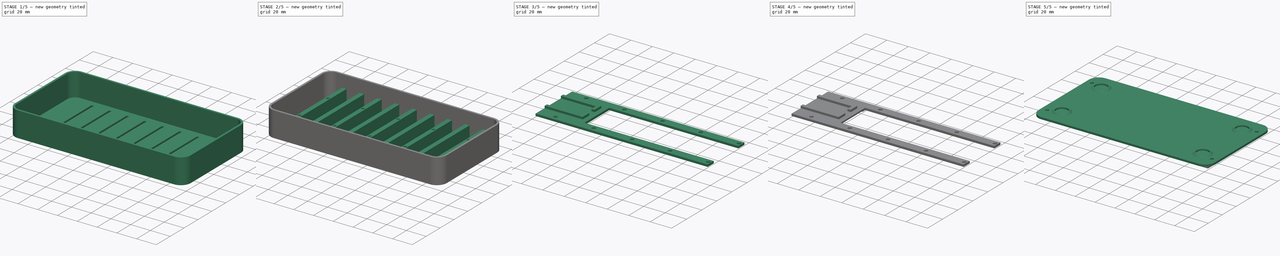
[diagram: build sequence overview — one tinted view per stage of 5, left to right]
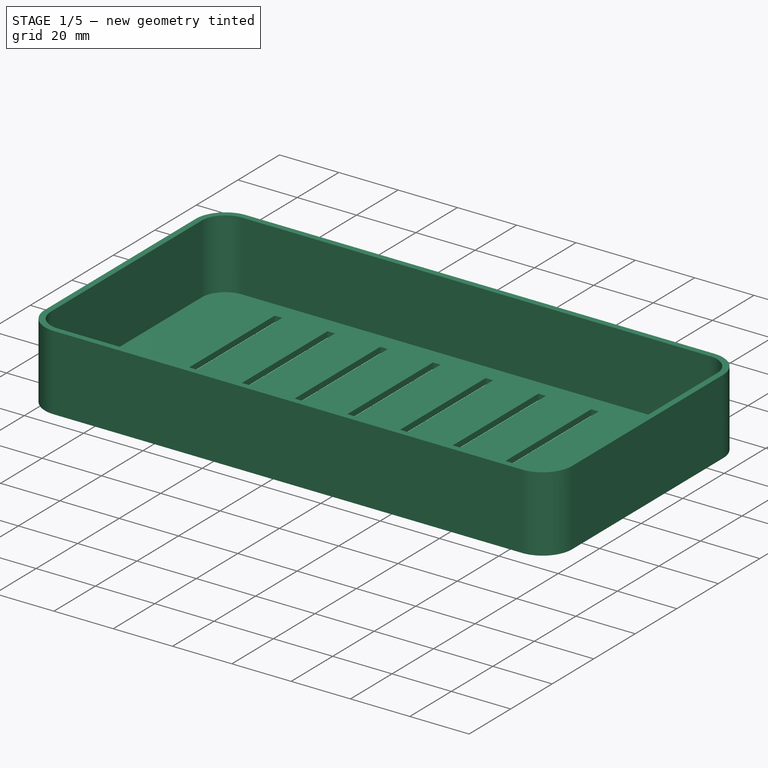
[diagram: stage 1 of 5 — iso view after this stage's code; geometry added in this stage tinted green]
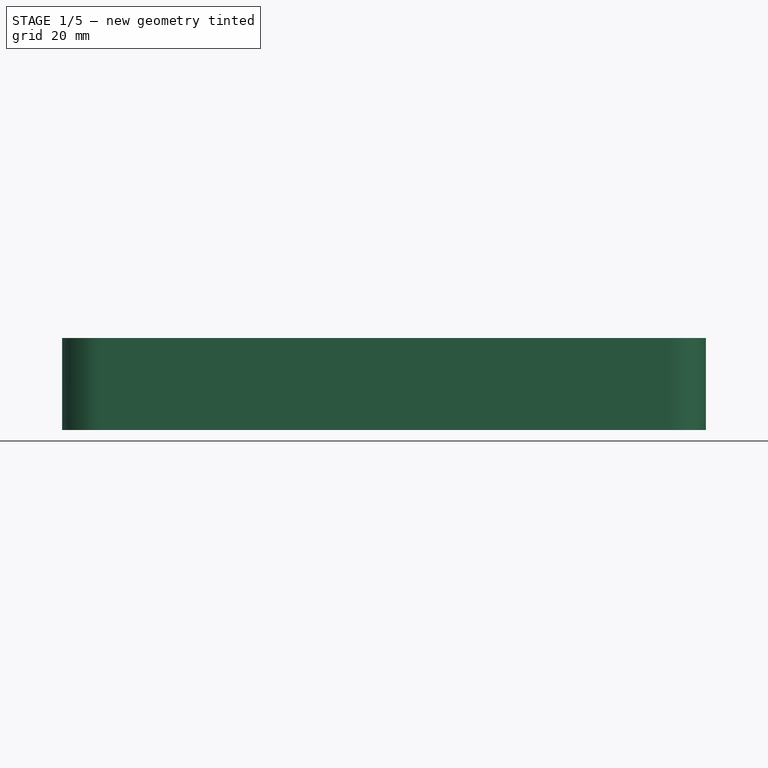
[diagram: stage 1 of 5 — front view after this stage's code; geometry added in this stage tinted green]
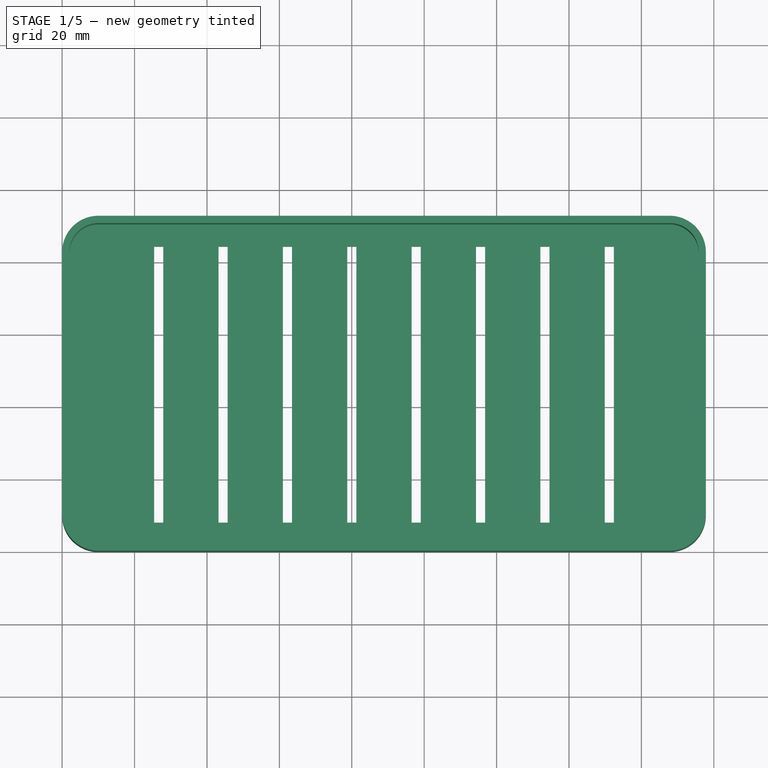
[diagram: stage 1 of 5 — top view after this stage's code; geometry added in this stage tinted green]
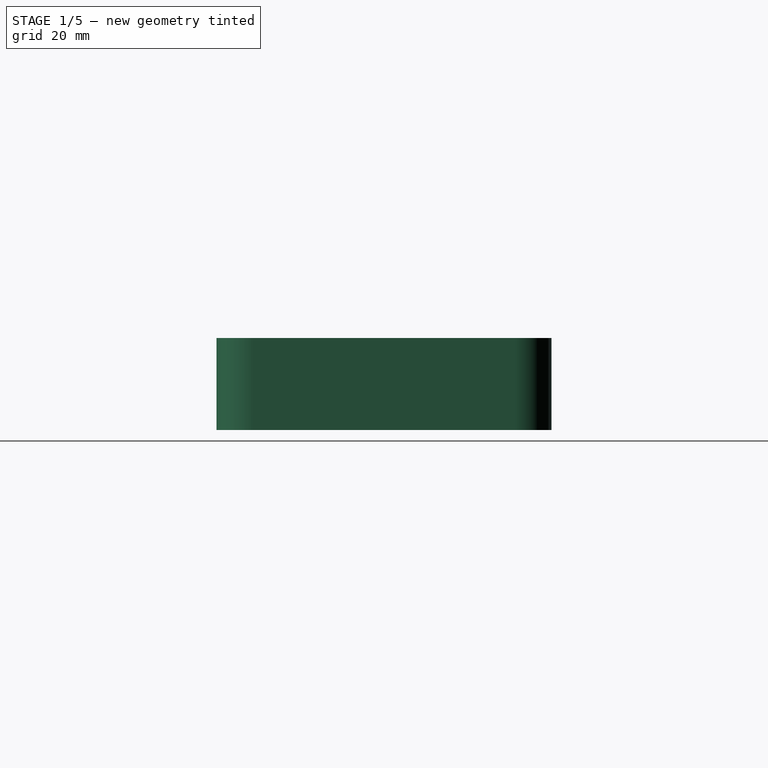
[diagram: stage 1 of 5 — right view after this stage's code; geometry added in this stage tinted green]
FCSTD DOCUMENT  (FreeCAD 1.0R39109 (Git))
Label: HousingLid
License: All rights reserved
LicenseURL: https://en.wikipedia.org/wiki/All_rights_reserved
objects: Sketcher::SketchObject×12, PartDesign::Pad×7, PartDesign::Pocket×6, PartDesign::ShapeBinder×4, PartDesign::Body×3, PartDesign::LinearPattern×2, PartDesign::Chamfer×2, PartDesign::Fillet×1, PartDesign::Thickness×1
note: 86 computed .brp shape members not serialized (recipe doc carries the construction recipe); baked Part::Feature solids carry a one-line shape summary decoded from their .brp

FEATURE [Sketcher::SketchObject] Sketch
  ArcFitTolerance = 1e-06
  AttachmentSupport = -> [XY_Plane]
  FullyConstrained = true
  MakeInternals = false
  MapMode = 5
  sketch-geometry (4):
    g0: LineSegment StartX=0 StartY=0 StartZ=0 EndX=177.8 EndY=0 EndZ=0
    g1: LineSegment StartX=177.8 StartY=0 StartZ=0 EndX=177.8 EndY=92.519 EndZ=0
    g2: LineSegment StartX=177.8 StartY=92.519 StartZ=0 EndX=0 EndY=92.519 EndZ=0
    g3: LineSegment StartX=0 StartY=92.519 StartZ=0 EndX=0 EndY=0 EndZ=0
  constraints (11):
    c: Coincident(g0,g1)
    c: Coincident(g1,g2)
    c: Coincident(g2,g3)
    c: Coincident(g3,g0)
    c: Horizontal(g0)
    c: Horizontal(g2)
    c: Vertical(g1)
    c: Vertical(g3)
    c: Distance(g1,g3) = 177.8
    c: Distance(g0,g2) = 92.519
    c: Coincident(g0,g-1)
FEATURE [PartDesign::Pad] Pad
  Direction = (0,0,1)
  Length = 25.4
  Length2 = 10
  Profile = -> Sketch
  ReferenceAxis = -> Sketch [N_Axis]
  Refine = true
  Suppressed = false
  Type = 0
FEATURE [PartDesign::Fillet] Fillet
  Base = -> Pad [Edge1,Edge2,Edge5,Edge8]
  BaseFeature = -> Pad
  Radius = 10
  Refine = true
  SupportTransform = false
  Suppressed = false
  UseAllEdges = false
FEATURE [PartDesign::Thickness] Thickness
  Base = -> Fillet [Face5]
  BaseFeature = -> Fillet
  Intersection = false
  Join = 0
  Mode = 0
  Refine = true
  Reversed = true
  SupportTransform = false
  Suppressed = false
  Value = 2
FEATURE [Sketcher::SketchObject] Sketch001
  ArcFitTolerance = 1e-06
  AttachmentSupport = -> [Thickness]
  ExternalGeometry = -> [Thickness]
  FullyConstrained = true
  MakeInternals = false
  MapMode = 5
  Placement = pos=(0,0,2) rot=(0,0,1;0rad)
  sketch-geometry (46):
    g0: LineSegment StartX=25.4 StartY=84.3595 StartZ=0 EndX=25.4 EndY=8.1595 EndZ=0
    g1: LineSegment StartX=25.4 StartY=8.1595 StartZ=0 EndX=27.94 EndY=8.1595 EndZ=0
    g2: LineSegment StartX=27.94 StartY=8.1595 StartZ=0 EndX=27.94 EndY=84.3595 EndZ=0
    g3: LineSegment StartX=27.94 StartY=84.3595 StartZ=0 EndX=25.4 EndY=84.3595 EndZ=0
    g4: LineSegment [constr] StartX=27.94 StartY=84.3595 StartZ=0 EndX=27.94 EndY=90.519 EndZ=0
    g5: LineSegment [constr] StartX=27.94 StartY=8.1595 StartZ=0 EndX=27.94 EndY=2 EndZ=0
    g6: LineSegment StartX=43.18 StartY=84.3595 StartZ=0 EndX=43.18 EndY=8.1595 EndZ=0
    g7: LineSegment StartX=43.18 StartY=8.1595 StartZ=0 EndX=45.72 EndY=8.1595 EndZ=0
    g8: LineSegment StartX=45.72 StartY=8.1595 StartZ=0 EndX=45.72 EndY=84.3595 EndZ=0
    g9: LineSegment StartX=45.72 StartY=84.3595 StartZ=0 EndX=43.18 EndY=84.3595 EndZ=0
    g10: LineSegment StartX=60.96 StartY=84.3595 StartZ=0 EndX=60.96 EndY=8.1595 EndZ=0
    g11: LineSegment StartX=60.96 StartY=8.1595 StartZ=0 EndX=63.5 EndY=8.1595 EndZ=0
    g12: LineSegment StartX=63.5 StartY=8.1595 StartZ=0 EndX=63.5 EndY=84.3595 EndZ=0
    g13: LineSegment StartX=63.5 StartY=84.3595 StartZ=0 EndX=60.96 EndY=84.3595 EndZ=0
    g14: LineSegment StartX=78.74 StartY=84.3595 StartZ=0 EndX=78.74 EndY=8.1595 EndZ=0
    g15: LineSegment StartX=78.74 StartY=8.1595 StartZ=0 EndX=81.28 EndY=8.1595 EndZ=0
    g16: LineSegment StartX=81.28 StartY=8.1595 StartZ=0 EndX=81.28 EndY=84.3595 EndZ=0
    g17: LineSegment StartX=81.28 StartY=84.3595 StartZ=0 EndX=78.74 EndY=84.3595 EndZ=0
    g18: LineSegment StartX=96.52 StartY=84.3595 StartZ=0 EndX=96.52 EndY=8.1595 EndZ=0
    g19: LineSegment StartX=96.52 StartY=8.1595 StartZ=0 EndX=99.06 EndY=8.1595 EndZ=0
    g20: LineSegment StartX=99.06 StartY=8.1595 StartZ=0 EndX=99.06 EndY=84.3595 EndZ=0
    g21: LineSegment StartX=99.06 StartY=84.3595 StartZ=0 EndX=96.52 EndY=84.3595 EndZ=0
    g22: LineSegment StartX=114.3 StartY=84.3595 StartZ=0 EndX=114.3 EndY=8.1595 EndZ=0
    g23: LineSegment StartX=114.3 StartY=8.1595 StartZ=0 EndX=116.84 EndY=8.1595 EndZ=0
    g24: LineSegment StartX=116.84 StartY=8.1595 StartZ=0 EndX=116.84 EndY=84.3595 EndZ=0
    g25: LineSegment StartX=116.84 StartY=84.3595 StartZ=0 EndX=114.3 EndY=84.3595 EndZ=0
    g26: LineSegment StartX=132.08 StartY=84.3595 StartZ=0 EndX=132.08 EndY=8.1595 EndZ=0
    g27: LineSegment StartX=132.08 StartY=8.1595 StartZ=0 EndX=134.62 EndY=8.1595 EndZ=0
    g28: LineSegment StartX=134.62 StartY=8.1595 StartZ=0 EndX=134.62 EndY=84.3595 EndZ=0
    g29: LineSegment StartX=134.62 StartY=84.3595 StartZ=0 EndX=132.08 EndY=84.3595 EndZ=0
    g30: LineSegment StartX=149.86 StartY=84.3595 StartZ=0 EndX=149.86 EndY=8.1595 EndZ=0
    g31: LineSegment StartX=149.86 StartY=8.1595 StartZ=0 EndX=152.4 EndY=8.1595 EndZ=0
    g32: LineSegment StartX=152.4 StartY=8.1595 StartZ=0 EndX=152.4 EndY=84.3595 EndZ=0
    g33: LineSegment StartX=152.4 StartY=84.3595 StartZ=0 EndX=149.86 EndY=84.3595 EndZ=0
    g34: LineSegment [constr] StartX=27.94 StartY=84.3595 StartZ=0 EndX=43.18 EndY=84.3595 EndZ=0
    g35: LineSegment [constr] StartX=45.72 StartY=84.3595 StartZ=0 EndX=60.96 EndY=84.3595 EndZ=0
    g36: LineSegment [constr] StartX=63.5 StartY=84.3595 StartZ=0 EndX=78.74 EndY=84.3595 EndZ=0
    g37: LineSegment [constr] StartX=81.28 StartY=84.3595 StartZ=0 EndX=96.52 EndY=84.3595 EndZ=0
    g38: LineSegment [constr] StartX=99.06 StartY=84.3595 StartZ=0 EndX=114.3 EndY=84.3595 EndZ=0
    g39: LineSegment [constr] StartX=116.84 StartY=84.3595 StartZ=0 EndX=132.08 EndY=84.3595 EndZ=0
    g40: LineSegment [constr] StartX=134.62 StartY=84.3595 StartZ=0 EndX=149.86 EndY=84.3595 EndZ=0
    g41: LineSegment [constr] StartX=27.94 StartY=8.1595 StartZ=0 EndX=45.72 EndY=8.1595 EndZ=0
    g42: LineSegment [constr] StartX=2 StartY=82.519 StartZ=0 EndX=2 EndY=84.3595 EndZ=0
    g43: LineSegment [constr] StartX=2 StartY=84.3595 StartZ=0 EndX=25.4 EndY=84.3595 EndZ=0
    g44: LineSegment [constr] StartX=175.8 StartY=82.519 StartZ=0 EndX=175.8 EndY=84.3595 EndZ=0
    g45: LineSegment [constr] StartX=175.8 StartY=84.3595 StartZ=0 EndX=152.4 EndY=84.3595 EndZ=0
  constraints (128):
    c: Coincident(g0,g1)
    c: Coincident(g1,g2)
    c: Coincident(g2,g3)
    c: Coincident(g3,g0)
    c: Vertical(g0)
    c: Vertical(g2)
    c: Horizontal(g1)
    c: Horizontal(g3)
    c: Distance(g0,g2) = 2.54
    c: Distance(g1,g3) = 76.2
    c: Coincident(g4,g2)
    c: PointOnObject(g4,g-3)
    c: Vertical(g4)
    c: Coincident(g5,g1)
    c: PointOnObject(g5,g-5)
    c: Vertical(g5)
    c: Equal(g4,g5)
    c: Coincident(g6,g7)
    c: Coincident(g7,g8)
    c: Coincident(g8,g9)
    c: Coincident(g9,g6)
    c: Vertical(g6)
    c: Vertical(g8)
    c: Horizontal(g7)
    c: Horizontal(g9)
    c: Coincident(g10,g11)
    c: Coincident(g11,g12)
    c: Coincident(g12,g13)
    c: Coincident(g13,g10)
    c: Vertical(g10)
    c: Vertical(g12)
    c: Horizontal(g11)
    c: Horizontal(g13)
    c: Coincident(g14,g15)
    c: Coincident(g15,g16)
    c: Coincident(g16,g17)
    c: Coincident(g17,g14)
    c: Vertical(g14)
    c: Vertical(g16)
    c: Horizontal(g15)
    c: Horizontal(g17)
    c: Coincident(g18,g19)
    c: Coincident(g19,g20)
    c: Coincident(g20,g21)
    c: Coincident(g21,g18)
    c: Vertical(g18)
    c: Vertical(g20)
    c: Horizontal(g19)
    c: Horizontal(g21)
    c: Coincident(g22,g23)
    c: Coincident(g23,g24)
    c: Coincident(g24,g25)
    c: Coincident(g25,g22)
    c: Vertical(g22)
    c: Vertical(g24)
    c: Horizontal(g23)
    c: Horizontal(g25)
    c: Coincident(g26,g27)
    c: Coincident(g27,g28)
    c: Coincident(g28,g29)
    c: Coincident(g29,g26)
    c: Vertical(g26)
    c: Vertical(g28)
    c: Horizontal(g27)
    c: Horizontal(g29)
    c: Coincident(g30,g31)
    c: Coincident(g31,g32)
    c: Coincident(g32,g33)
    c: Coincident(g33,g30)
    c: Vertical(g30)
    c: Vertical(g32)
    c: Horizontal(g31)
    c: Horizontal(g33)
    c: Equal(g6,g0)
    c: Equal(g10,g6)
    c: Equal(g14,g6)
    c: Equal(g18,g6)
    c: Equal(g22,g6)
    c: Equal(g26,g6)
    c: Equal(g30,g6)
    c: Equal(g1,g7)
    c: Equal(g7,g11)
    c: Equal(g15,g11)
    c: Equal(g19,g15)
    c: Equal(g23,g19)
    c: Equal(g27,g23)
    c: Equal(g31,g27)
    c: Coincident(g34,g2)
    c: Coincident(g34,g6)
    c: Horizontal(g34)
    c: Coincident(g35,g8)
    c: Coincident(g35,g10)
    c: Horizontal(g35)
    c: Coincident(g36,g12)
    c: Coincident(g36,g14)
    c: Horizontal(g36)
    c: Coincident(g37,g16)
    c: Coincident(g37,g18)
    c: Horizontal(g37)
    c: Coincident(g38,g20)
    c: Coincident(g38,g22)
    c: Horizontal(g38)
    c: Coincident(g39,g24)
    c: Coincident(g39,g26)
    c: Coincident(g40,g28)
    c: Coincident(g40,g30)
    c: Horizontal(g40)
    c: Horizontal(g39)
    c: Equal(g34,g35)
    c: Equal(g36,g35)
    c: Equal(g37,g36)
    c: Equal(g38,g37)
    c: Equal(g39,g37)
    c: Equal(g40,g37)
    c: Coincident(g41,g1)
    c: Coincident(g41,g7)
    c: DistanceX(g41,g41) = 17.78
    c: Coincident(g42,g-4)
    c: Vertical(g42)
    c: Coincident(g43,g42)
    c: Coincident(g43,g0)
    c: Horizontal(g43)
    c: Coincident(g44,g-6)
    c: Vertical(g44)
    c: Coincident(g45,g44)
    c: Coincident(g45,g32)
    c: Horizontal(g45)
    c: Equal(g45,g43)
FEATURE [PartDesign::Pocket] Pocket
  BaseFeature = -> Thickness
  Direction = (0,0,-1)
  Length = 5
  Length2 = 5
  Profile = -> Sketch001
  ReferenceAxis = -> Sketch001 [N_Axis]
  Refine = true
  Suppressed = false
  Type = 1
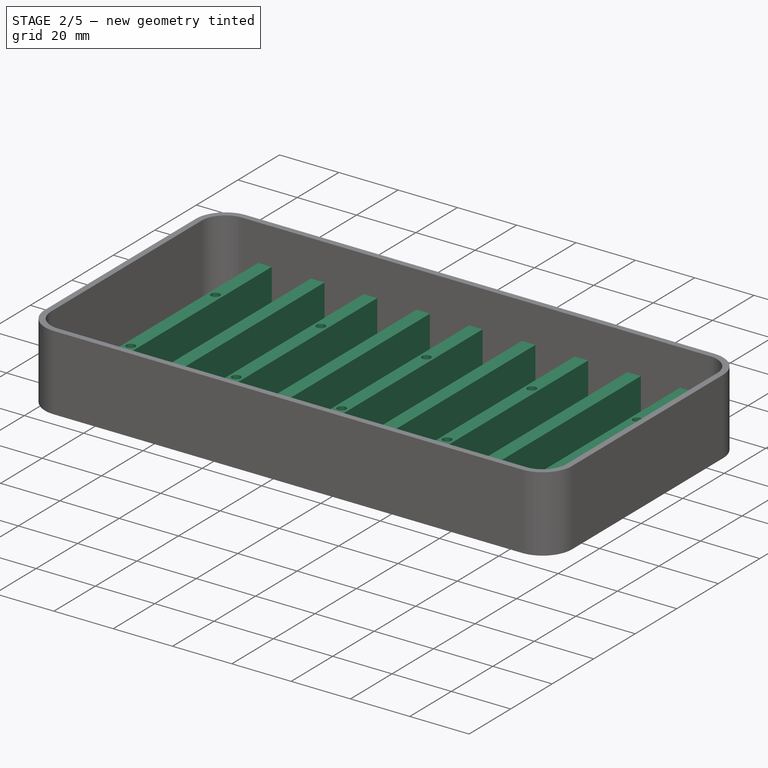
[diagram: stage 2 of 5 — iso view after this stage's code; geometry added in this stage tinted green]
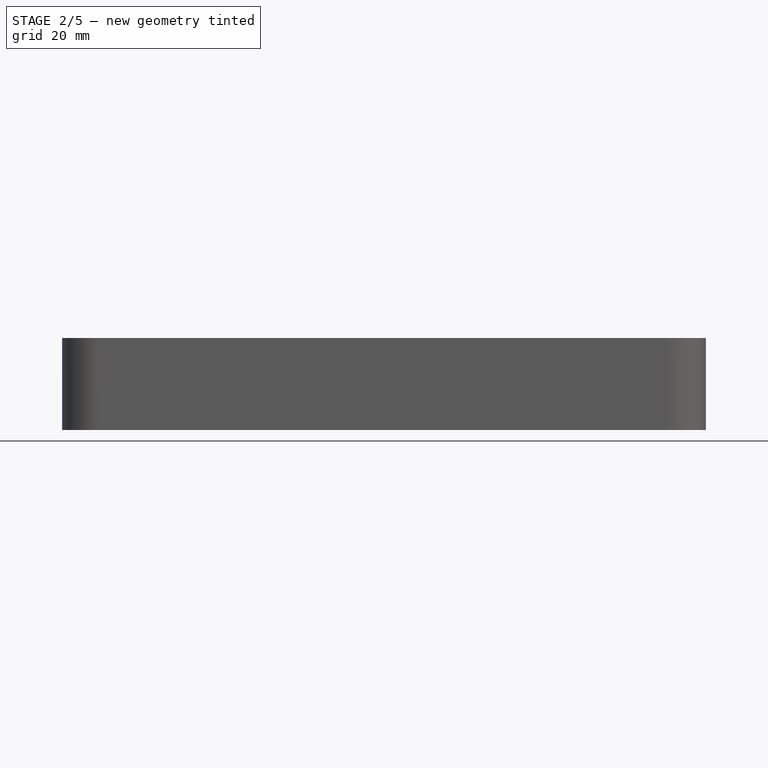
[diagram: stage 2 of 5 — front view after this stage's code; geometry added in this stage tinted green]
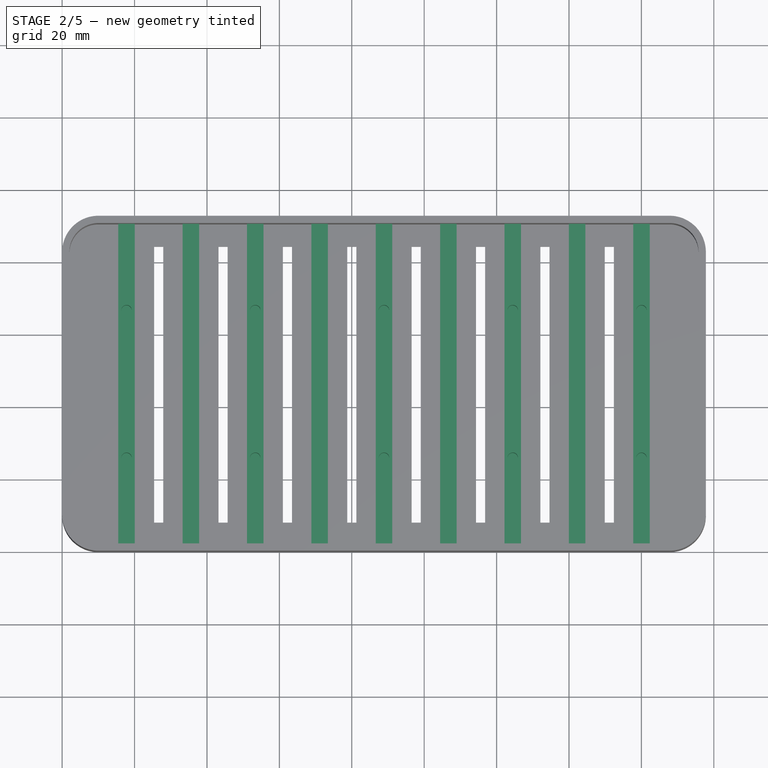
[diagram: stage 2 of 5 — top view after this stage's code; geometry added in this stage tinted green]
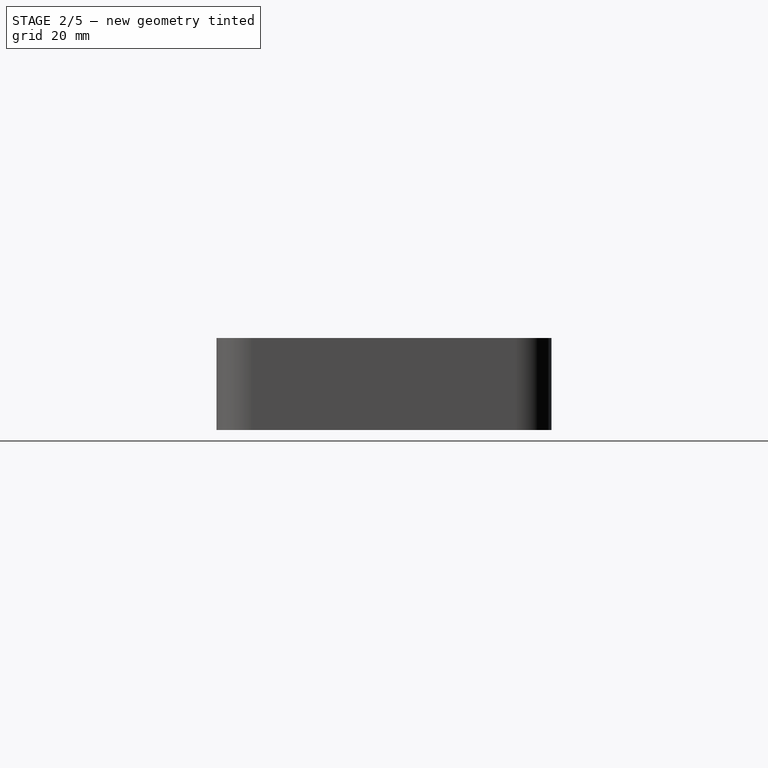
[diagram: stage 2 of 5 — right view after this stage's code; geometry added in this stage tinted green]
FEATURE [Sketcher::SketchObject] Sketch002
  ArcFitTolerance = 1e-06
  AttachmentSupport = -> [Pocket]
  ExternalGeometry = -> [Pocket]
  FullyConstrained = true
  MakeInternals = false
  MapMode = 5
  Placement = pos=(0,0,2) rot=(0,0,1;0rad)
  sketch-geometry (6):
    g0: LineSegment StartX=15.5067 StartY=90.519 StartZ=0 EndX=15.5067 EndY=2 EndZ=0
    g1: LineSegment StartX=15.5067 StartY=2 StartZ=0 EndX=20.0533 EndY=2 EndZ=0
    g2: LineSegment StartX=20.0533 StartY=2 StartZ=0 EndX=20.0533 EndY=90.519 EndZ=0
    g3: LineSegment StartX=20.0533 StartY=90.519 StartZ=0 EndX=15.5067 EndY=90.519 EndZ=0
    g4: LineSegment [constr] StartX=27.94 StartY=84.3595 StartZ=0 EndX=26.67 EndY=86.5592 EndZ=0
    g5: LineSegment [constr] StartX=26.67 StartY=86.5592 StartZ=0 EndX=25.4 EndY=84.3595 EndZ=0
  constraints (17):
    c: Coincident(g0,g1)
    c: Coincident(g1,g2)
    c: Coincident(g2,g3)
    c: Coincident(g3,g0)
    c: Vertical(g0)
    c: Vertical(g2)
    c: Horizontal(g1)
    c: Horizontal(g3)
    c: PointOnObject(g0,g-7)
    c: PointOnObject(g1,g-8)
    c: DistanceX(g3,g3) = 4.5466
    c: Coincident(g4,g-5)
    c: Coincident(g5,g4)
    c: Coincident(g5,g-4)
    c: Equal(g4,g5)
    c: Equal(g5,g-3)
    c: Distance(g4,g2) = 6.6167
FEATURE [PartDesign::Pad] Pad001
  BaseFeature = -> Pocket
  Direction = (0,0,1)
  Length = 11.0744
  Length2 = 10
  Profile = -> Sketch002
  ReferenceAxis = -> Sketch002 [N_Axis]
  Refine = true
  Suppressed = false
  Type = 0
FEATURE [PartDesign::LinearPattern] LinearPattern
  BaseFeature = -> Pad001
  Direction = -> Sketch002 [H_Axis]
  Length = 142.24
  Mode = 1
  Occurrences = 9
  Offset = 17.78
  Originals = -> [Pad001]
  Refine = true
  Suppressed = false
  TransformMode = 0
FEATURE [Sketcher::SketchObject] Sketch003
  ArcFitTolerance = 1e-06
  AttachmentSupport = -> [LinearPattern]
  ExternalGeometry = -> [LinearPattern]
  FullyConstrained = true
  MakeInternals = false
  MapMode = 5
  Placement = pos=(0,0,13.0744) rot=(0,0,1;0rad)
  sketch-geometry (7):
    g0: Circle CenterX=17.78 CenterY=66.643 CenterZ=0 NormalX=0 NormalY=0 NormalZ=1 AngleXU=0 Radius=1.45
    g1: LineSegment [constr] StartX=17.78 StartY=66.643 StartZ=0 EndX=15.5067 EndY=66.643 EndZ=0
    g2: LineSegment [constr] StartX=17.78 StartY=66.643 StartZ=0 EndX=20.0533 EndY=66.643 EndZ=0
    g3: Circle CenterX=17.78 CenterY=25.876 CenterZ=0 NormalX=0 NormalY=0 NormalZ=1 AngleXU=0 Radius=1.45
    g4: LineSegment [constr] StartX=17.78 StartY=66.643 StartZ=0 EndX=17.78 EndY=25.876 EndZ=0
    g5: LineSegment [constr] StartX=17.78 StartY=66.643 StartZ=0 EndX=17.78 EndY=90.519 EndZ=0
    g6: LineSegment [constr] StartX=17.78 StartY=25.876 StartZ=0 EndX=17.78 EndY=2 EndZ=0
  constraints (20):
    c: Diameter(g0) = 2.9
    c: Coincident(g1,g0)
    c: PointOnObject(g1,g-3)
    c: Horizontal(g1)
    c: Coincident(g2,g0)
    c: PointOnObject(g2,g-4)
    c: Horizontal(g2)
    c: Equal(g1,g2)
    c: Equal(g3,g0)
    c: Coincident(g4,g0)
    c: Coincident(g4,g3)
    c: Vertical(g4)
    c: Coincident(g5,g0)
    c: PointOnObject(g5,g-5)
    c: Vertical(g5)
    c: Coincident(g6,g3)
    c: PointOnObject(g6,g-6)
    c: Vertical(g6)
    c: Equal(g5,g6)
    c: DistanceY(g5,g5) = 23.876
FEATURE [PartDesign::Pocket] Pocket001
  BaseFeature = -> LinearPattern
  Direction = (0,0,-1)
  Length = 8
  Length2 = 5
  Profile = -> Sketch003
  ReferenceAxis = -> Sketch003 [N_Axis]
  Refine = true
  Suppressed = false
  Type = 0
FEATURE [PartDesign::LinearPattern] LinearPattern001
  BaseFeature = -> Pocket001
  Direction = -> Sketch003 [H_Axis]
  Length = 142.24
  Mode = 1
  Occurrences = 5
  Offset = 35.56
  Originals = -> [Pocket001]
  Refine = true
  Suppressed = false
  TransformMode = 0
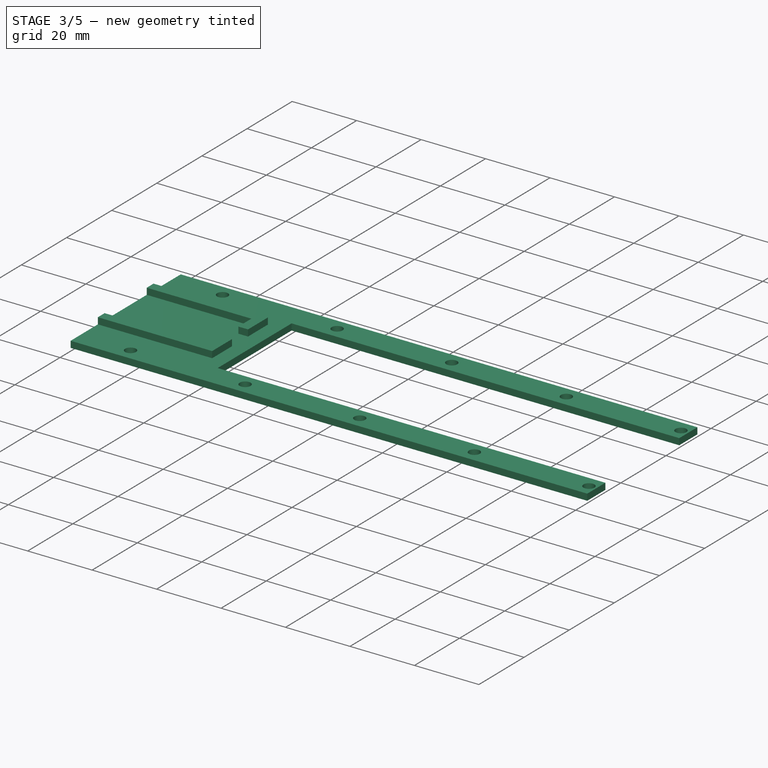
[diagram: stage 3 of 5 — iso view after this stage's code; geometry added in this stage tinted green]
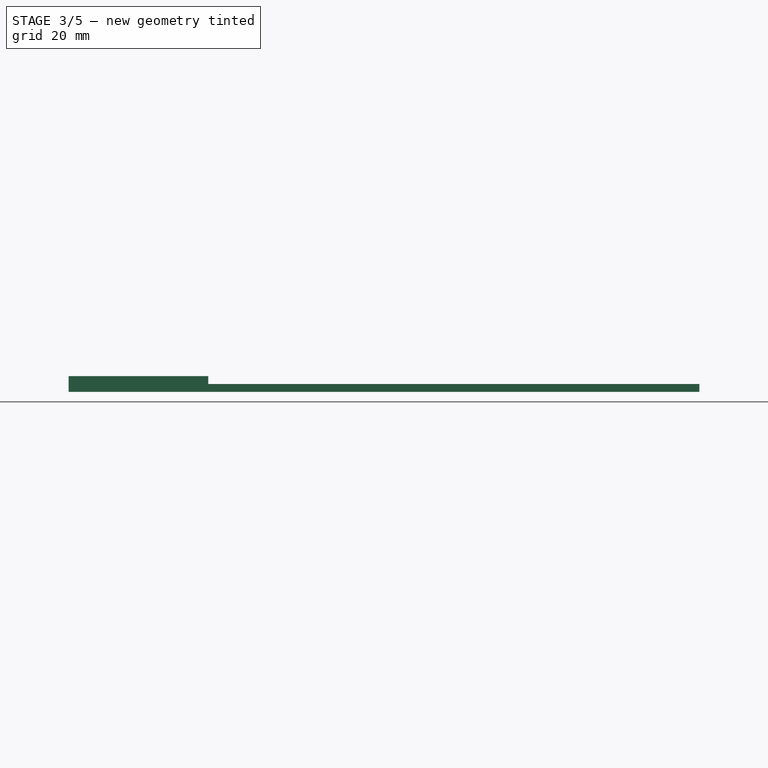
[diagram: stage 3 of 5 — front view after this stage's code; geometry added in this stage tinted green]
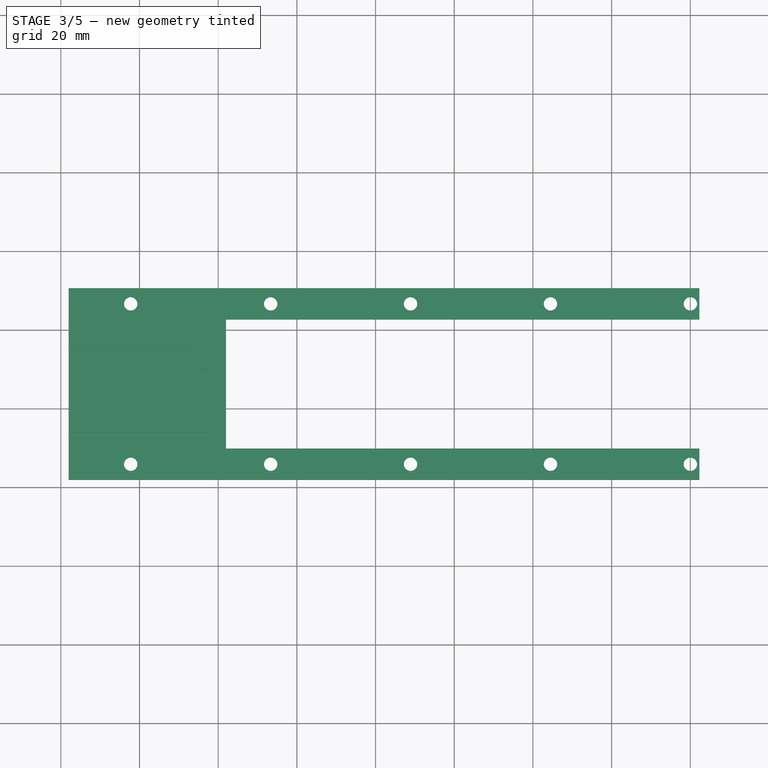
[diagram: stage 3 of 5 — top view after this stage's code; geometry added in this stage tinted green]
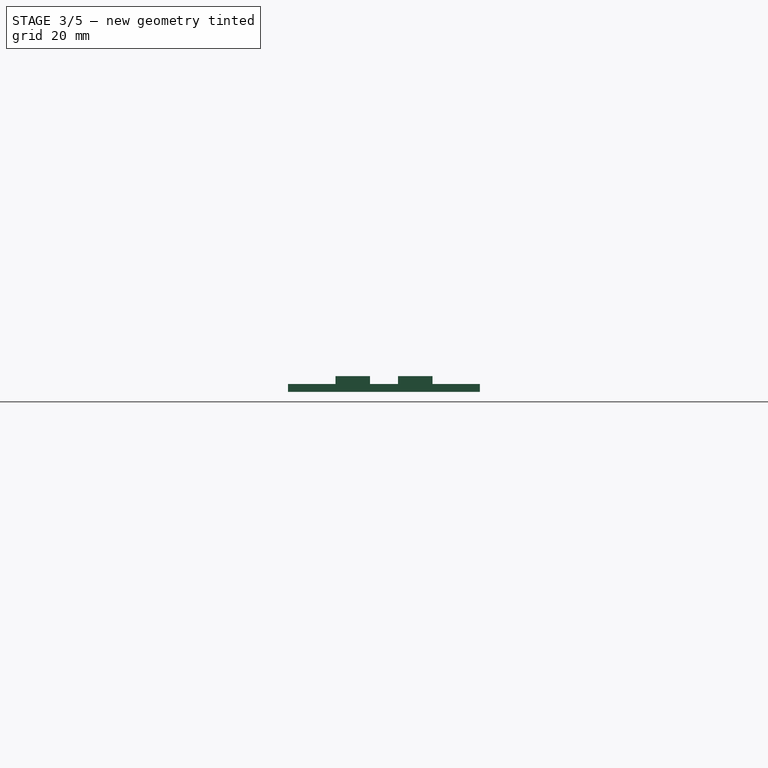
[diagram: stage 3 of 5 — right view after this stage's code; geometry added in this stage tinted green]
FEATURE [PartDesign::ShapeBinder] ShapeBinder
  Support = -> [LinearPattern001]
  TraceSupport = false
FEATURE [Sketcher::SketchObject] Sketch004
  ArcFitTolerance = 1e-06
  AttachmentSupport = -> [ShapeBinder]
  ExternalGeometry = -> [ShapeBinder]
  FullyConstrained = true
  MakeInternals = false
  MapMode = 5
  Placement = pos=(0,0,13.0744) rot=(0,0,1;0rad)
  sketch-geometry (12):
    g0: LineSegment StartX=2 StartY=70.643 StartZ=0 EndX=2 EndY=21.876 EndZ=0
    g1: LineSegment StartX=2 StartY=21.876 StartZ=0 EndX=162.293 EndY=21.876 EndZ=0
    g2: LineSegment StartX=162.293 StartY=21.876 StartZ=0 EndX=162.293 EndY=29.876 EndZ=0
    g3: LineSegment StartX=162.293 StartY=29.876 StartZ=0 EndX=42 EndY=29.876 EndZ=0
    g4: LineSegment StartX=42 StartY=29.876 StartZ=0 EndX=42 EndY=62.643 EndZ=0
    g5: LineSegment StartX=42 StartY=62.643 StartZ=0 EndX=162.293 EndY=62.643 EndZ=0
    g6: LineSegment StartX=162.293 StartY=62.643 StartZ=0 EndX=162.293 EndY=70.643 EndZ=0
    g7: LineSegment StartX=162.293 StartY=70.643 StartZ=0 EndX=2 EndY=70.643 EndZ=0
    g8: LineSegment [constr] StartX=160.02 StartY=66.643 StartZ=0 EndX=160.02 EndY=70.643 EndZ=0
    g9: LineSegment [constr] StartX=160.02 StartY=66.643 StartZ=0 EndX=160.02 EndY=62.643 EndZ=0
    g10: LineSegment [constr] StartX=162.293 StartY=62.643 StartZ=0 EndX=162.293 EndY=29.876 EndZ=0
    g11: LineSegment [constr] StartX=160.02 StartY=25.876 StartZ=0 EndX=160.02 EndY=29.876 EndZ=0
  constraints (35):
    c: Vertical(g0)
    c: Coincident(g1,g0)
    c: Horizontal(g1)
    c: Coincident(g2,g1)
    c: Vertical(g2)
    c: Coincident(g3,g2)
    c: Horizontal(g3)
    c: Coincident(g4,g3)
    c: Vertical(g4)
    c: Coincident(g5,g4)
    c: Horizontal(g5)
    c: Coincident(g6,g5)
    c: Vertical(g6)
    c: Coincident(g7,g6)
    c: Coincident(g7,g0)
    c: Horizontal(g7)
    c: Equal(g6,g2)
    c: PointOnObject(g0,g-5)
    c: Coincident(g8,g-6)
    c: PointOnObject(g8,g7)
    c: Vertical(g8)
    c: Coincident(g9,g8)
    c: PointOnObject(g9,g5)
    c: Vertical(g9)
    c: Equal(g8,g9)
    c: Coincident(g10,g5)
    c: Coincident(g10,g2)
    c: Vertical(g10)
    c: DistanceY(g6,g6) = 8
    c: PointOnObject(g6,g-7)
    c: Distance(g4,g0) = 40
    c: Coincident(g11,g-8)
    c: PointOnObject(g11,g3)
    c: Vertical(g11)
    c: Equal(g8,g11)
FEATURE [PartDesign::Pad] Pad002
  Direction = (0,0,1)
  Length = 2
  Length2 = 10
  Profile = -> Sketch004
  ReferenceAxis = -> Sketch004 [N_Axis]
  Refine = true
  Suppressed = false
  Type = 0
FEATURE [Sketcher::SketchObject] Sketch005
  ArcFitTolerance = 1e-06
  AttachmentSupport = -> [Pad002]
  ExternalGeometry = -> [Pad002]
  FullyConstrained = true
  MakeInternals = false
  MapMode = 5
  Placement = pos=(0,0,15.0744) rot=(0,0,1;0rad)
  sketch-geometry (15):
    g0: LineSegment StartX=2 StartY=58.594 StartZ=0 EndX=37.47 EndY=58.594 EndZ=0
    g1: LineSegment StartX=37.47 StartY=58.594 StartZ=0 EndX=37.47 EndY=49.8155 EndZ=0
    g2: LineSegment StartX=37.47 StartY=49.8155 StartZ=0 EndX=34.47 EndY=49.8155 EndZ=0
    g3: LineSegment StartX=34.47 StartY=49.8155 StartZ=0 EndX=34.47 EndY=55.594 EndZ=0
    g4: LineSegment StartX=34.47 StartY=55.594 StartZ=0 EndX=2 EndY=55.594 EndZ=0
    g5: LineSegment StartX=2 StartY=55.594 StartZ=0 EndX=2 EndY=58.594 EndZ=0
    g6: LineSegment StartX=2 StartY=36.925 StartZ=0 EndX=34.47 EndY=36.925 EndZ=0
    g7: LineSegment StartX=34.47 StartY=36.925 StartZ=0 EndX=34.47 EndY=42.7035 EndZ=0
    g8: LineSegment StartX=34.47 StartY=42.7035 StartZ=0 EndX=37.47 EndY=42.7035 EndZ=0
    g9: LineSegment StartX=37.47 StartY=42.7035 StartZ=0 EndX=37.47 EndY=33.925 EndZ=0
    g10: LineSegment StartX=37.47 StartY=33.925 StartZ=0 EndX=2 EndY=33.925 EndZ=0
    g11: LineSegment StartX=2 StartY=33.925 StartZ=0 EndX=2 EndY=36.925 EndZ=0
    g12: LineSegment [constr] StartX=37.47 StartY=49.8155 StartZ=0 EndX=37.47 EndY=42.7035 EndZ=0
    g13: LineSegment [constr] StartX=37.47 StartY=58.594 StartZ=0 EndX=37.47 EndY=70.643 EndZ=0
    g14: LineSegment [constr] StartX=37.47 StartY=33.925 StartZ=0 EndX=37.47 EndY=21.876 EndZ=0
  constraints (44):
    c: PointOnObject(g0,g-3)
    c: Horizontal(g0)
    c: Coincident(g1,g0)
    c: Vertical(g1)
    c: Coincident(g2,g1)
    c: Horizontal(g2)
    c: Coincident(g3,g2)
    c: Vertical(g3)
    c: PointOnObject(g4,g-3)
    c: Horizontal(g4)
    c: Coincident(g5,g4)
    c: Coincident(g5,g0)
    c: Coincident(g3,g4)
    c: Equal(g5,g2)
    c: PointOnObject(g6,g-3)
    c: Horizontal(g6)
    c: Coincident(g7,g6)
    c: Vertical(g7)
    c: Coincident(g8,g7)
    c: Horizontal(g8)
    c: Coincident(g9,g8)
    c: Vertical(g9)
    c: Coincident(g10,g9)
    c: PointOnObject(g10,g-3)
    c: Horizontal(g10)
    c: Coincident(g11,g10)
    c: Coincident(g11,g6)
    c: Equal(g2,g8)
    c: Equal(g11,g8)
    c: Coincident(g12,g1)
    c: Coincident(g12,g8)
    c: Vertical(g12)
    c: DistanceX(g2,g2) = 3
    c: Distance(g6,g4) = 18.669
    c: Coincident(g13,g0)
    c: PointOnObject(g13,g-4)
    c: Vertical(g13)
    c: Coincident(g14,g9)
    c: PointOnObject(g14,g-5)
    c: Vertical(g14)
    c: Equal(g13,g14)
    c: Equal(g3,g7)
    c: DistanceY(g12,g12) = 7.112
    c: DistanceX(g4,g4) = 32.47
FEATURE [PartDesign::Pad] Pad003
  BaseFeature = -> Pad002
  Direction = (0,0,1)
  Length = 2
  Length2 = 10
  Profile = -> Sketch005
  ReferenceAxis = -> Sketch005 [N_Axis]
  Refine = true
  Suppressed = false
  Type = 0
FEATURE [Sketcher::SketchObject] Sketch006
  ArcFitTolerance = 1e-06
  AttachmentSupport = -> [Pad003]
  ExternalGeometry = -> [ShapeBinder]
  FullyConstrained = true
  MakeInternals = false
  MapMode = 5
  Placement = pos=(0,0,13.0744) rot=(1,0,0;3.14159rad)
  sketch-geometry (10):
    g0: Circle CenterX=17.78 CenterY=-25.876 CenterZ=0 NormalX=0 NormalY=0 NormalZ=1 AngleXU=0 Radius=1.7
    g1: Circle CenterX=53.34 CenterY=-25.876 CenterZ=0 NormalX=0 NormalY=0 NormalZ=1 AngleXU=0 Radius=1.7
    g2: Circle CenterX=88.9 CenterY=-25.876 CenterZ=0 NormalX=0 NormalY=0 NormalZ=1 AngleXU=0 Radius=1.7
    g3: Circle CenterX=124.46 CenterY=-25.876 CenterZ=0 NormalX=0 NormalY=0 NormalZ=1 AngleXU=0 Radius=1.7
    g4: Circle CenterX=160.02 CenterY=-25.876 CenterZ=0 NormalX=0 NormalY=0 NormalZ=1 AngleXU=0 Radius=1.7
    g5: Circle CenterX=160.02 CenterY=-66.643 CenterZ=0 NormalX=0 NormalY=0 NormalZ=1 AngleXU=0 Radius=1.7
    g6: Circle CenterX=124.46 CenterY=-66.643 CenterZ=0 NormalX=0 NormalY=0 NormalZ=1 AngleXU=0 Radius=1.7
    g7: Circle CenterX=88.9 CenterY=-66.643 CenterZ=0 NormalX=0 NormalY=0 NormalZ=1 AngleXU=0 Radius=1.7
    g8: Circle CenterX=53.34 CenterY=-66.643 CenterZ=0 NormalX=0 NormalY=0 NormalZ=1 AngleXU=0 Radius=1.7
    g9: Circle CenterX=17.78 CenterY=-66.643 CenterZ=0 NormalX=0 NormalY=0 NormalZ=1 AngleXU=0 Radius=1.7
  constraints (20):
    c: Diameter(g0) = 3.4
    c: Coincident(g0,g-3)
    c: Coincident(g1,g-4)
    c: Coincident(g2,g-5)
    c: Coincident(g3,g-6)
    c: Coincident(g4,g-7)
    c: Coincident(g5,g-8)
    c: Coincident(g6,g-9)
    c: Coincident(g7,g-10)
    c: Coincident(g8,g-11)
    c: Coincident(g9,g-12)
    c: Equal(g9,g0)
    c: Equal(g8,g9)
    c: Equal(g8,g7)
    c: Equal(g7,g6)
    c: Equal(g6,g5)
    c: Equal(g5,g4)
    c: Equal(g4,g3)
    c: Equal(g3,g2)
    c: Equal(g2,g1)
FEATURE [PartDesign::Pocket] Pocket002
  BaseFeature = -> Pad003
  Direction = (0,0,1)
  Length = 5
  Length2 = 5
  Profile = -> Sketch006
  ReferenceAxis = -> Sketch006 [N_Axis]
  Refine = true
  Suppressed = false
  Type = 1
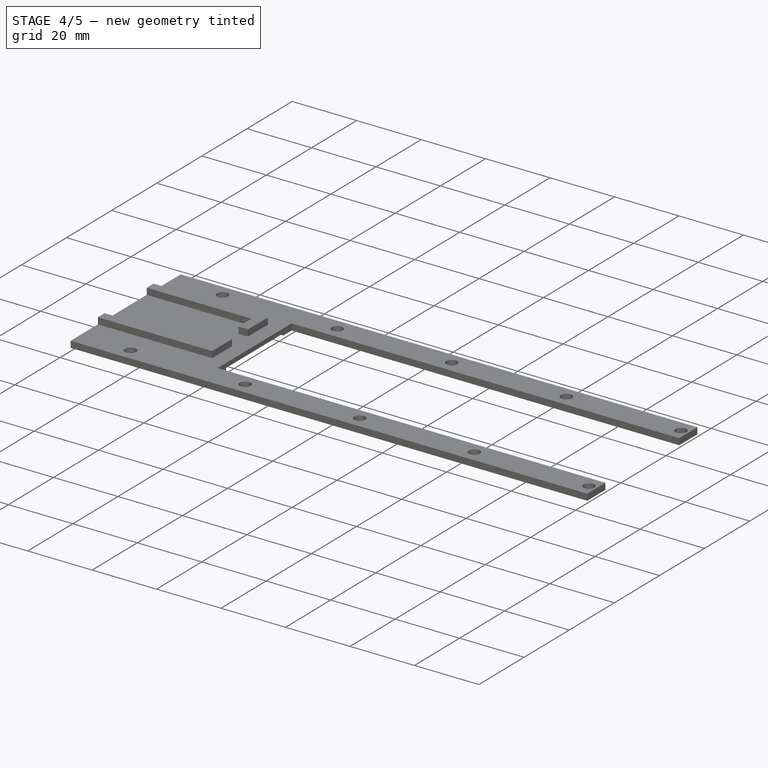
[diagram: stage 4 of 5 — iso view after this stage's code; geometry added in this stage tinted green]
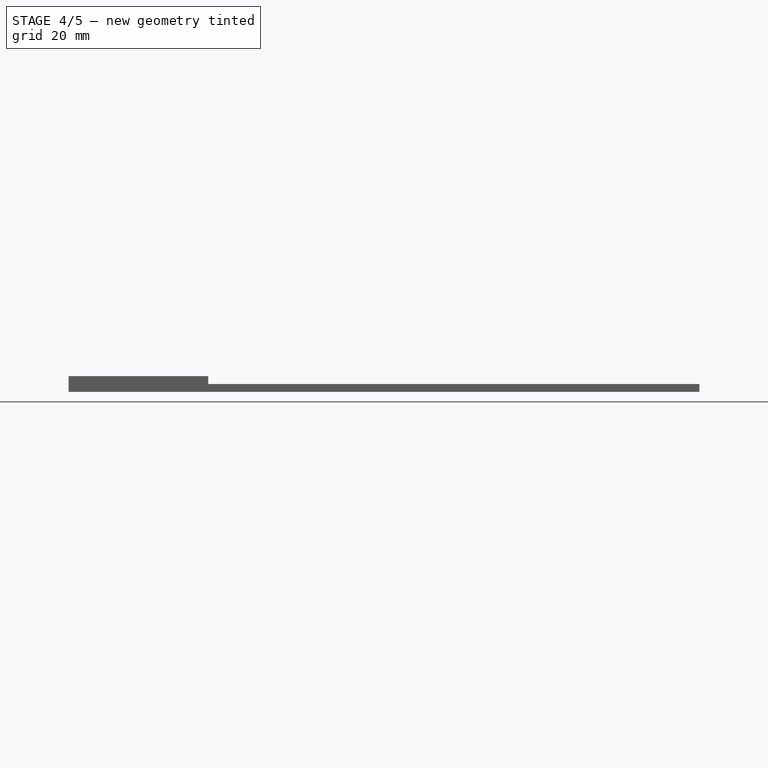
[diagram: stage 4 of 5 — front view after this stage's code; geometry added in this stage tinted green]
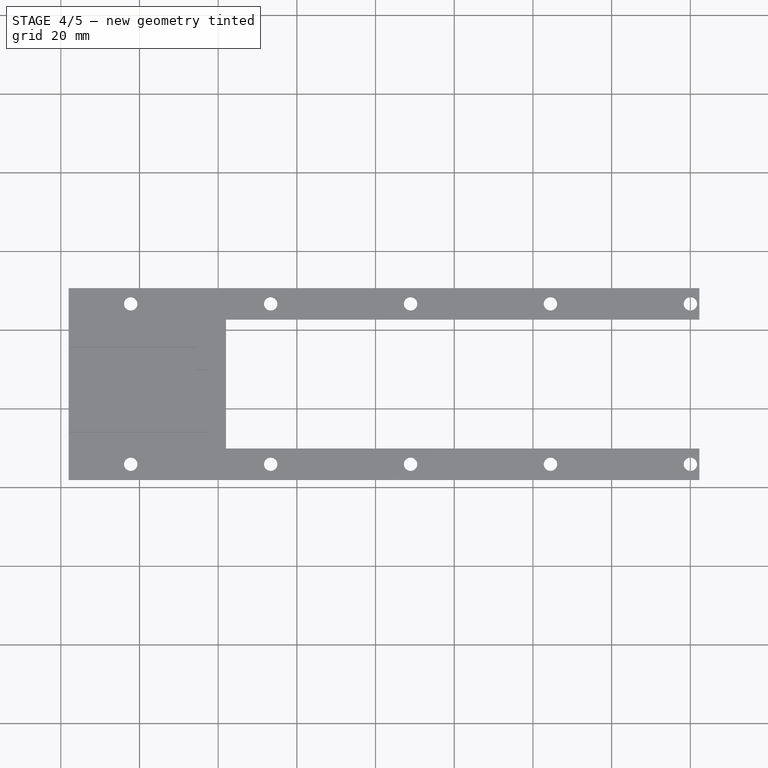
[diagram: stage 4 of 5 — top view after this stage's code; geometry added in this stage tinted green]
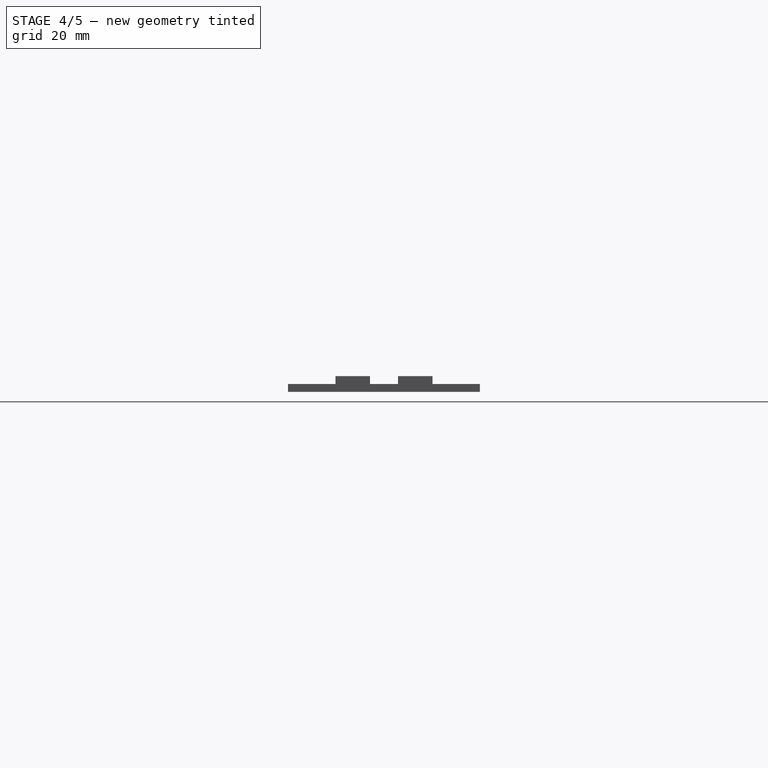
[diagram: stage 4 of 5 — right view after this stage's code; geometry added in this stage tinted green]
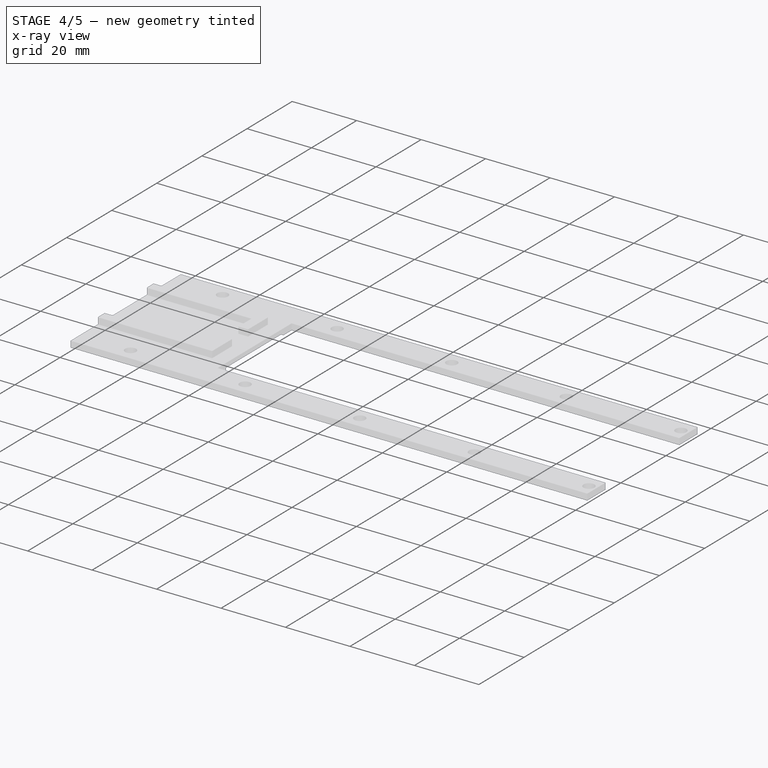
[diagram: stage 4 of 5 — x-ray composite at the iso view; earlier geometry ghosted, this stage's added geometry solid]
FEATURE [Sketcher::SketchObject] Sketch007
  ArcFitTolerance = 1e-06
  AttachmentSupport = -> [LinearPattern001]
  ExternalGeometry = -> [LinearPattern001]
  FullyConstrained = true
  MakeInternals = false
  MapMode = 5
  Placement = pos=(0,0,2) rot=(0,0,1;0rad)
  sketch-geometry (32):
    g0: LineSegment StartX=2 StartY=82.519 StartZ=0 EndX=2 EndY=74.519 EndZ=0
    g1: LineSegment StartX=2 StartY=74.519 StartZ=0 EndX=10 EndY=74.519 EndZ=0
    g2: LineSegment StartX=10 StartY=74.519 StartZ=0 EndX=10 EndY=82.519 EndZ=0
    g3: LineSegment StartX=10 StartY=82.519 StartZ=0 EndX=2 EndY=82.519 EndZ=0
    g4: LineSegment StartX=2 StartY=10 StartZ=0 EndX=10 EndY=10 EndZ=0
    g5: LineSegment StartX=10 StartY=10 StartZ=0 EndX=10 EndY=18 EndZ=0
    g6: LineSegment StartX=10 StartY=18 StartZ=0 EndX=2 EndY=18 EndZ=0
    g7: LineSegment StartX=2 StartY=18 StartZ=0 EndX=2 EndY=10 EndZ=0
    g8: LineSegment StartX=175.8 StartY=10 StartZ=0 EndX=175.8 EndY=18 EndZ=0
    g9: LineSegment StartX=175.8 StartY=18 StartZ=0 EndX=167.8 EndY=18 EndZ=0
    g10: LineSegment StartX=167.8 StartY=18 StartZ=0 EndX=167.8 EndY=10 EndZ=0
    g11: LineSegment StartX=167.8 StartY=10 StartZ=0 EndX=175.8 EndY=10 EndZ=0
    g12: LineSegment StartX=175.8 StartY=82.519 StartZ=0 EndX=167.8 EndY=82.519 EndZ=0
    g13: LineSegment StartX=167.8 StartY=82.519 StartZ=0 EndX=167.8 EndY=74.519 EndZ=0
    g14: LineSegment StartX=167.8 StartY=74.519 StartZ=0 EndX=175.8 EndY=74.519 EndZ=0
    g15: LineSegment StartX=175.8 StartY=74.519 StartZ=0 EndX=175.8 EndY=82.519 EndZ=0
    g16: Circle CenterX=6 CenterY=78.519 CenterZ=0 NormalX=0 NormalY=0 NormalZ=1 AngleXU=0 Radius=2
    g17: LineSegment [constr] StartX=2 StartY=82.519 StartZ=0 EndX=6 EndY=78.519 EndZ=0
    g18: LineSegment [constr] StartX=6 StartY=78.519 StartZ=0 EndX=10 EndY=82.519 EndZ=0
    g19: LineSegment [constr] StartX=6 StartY=78.519 StartZ=0 EndX=10 EndY=74.519 EndZ=0
    g20: Circle CenterX=6 CenterY=14 CenterZ=0 NormalX=0 NormalY=0 NormalZ=1 AngleXU=0 Radius=2
    g21: Circle CenterX=171.8 CenterY=14 CenterZ=0 NormalX=0 NormalY=0 NormalZ=1 AngleXU=0 Radius=2
    g22: Circle CenterX=171.8 CenterY=78.519 CenterZ=0 NormalX=0 NormalY=0 NormalZ=1 AngleXU=0 Radius=2
    g23: LineSegment [constr] StartX=2 StartY=18 StartZ=0 EndX=6 EndY=14 EndZ=0
    g24: LineSegment [constr] StartX=10 StartY=18 StartZ=0 EndX=6 EndY=14 EndZ=0
    g25: LineSegment [constr] StartX=6 StartY=14 StartZ=0 EndX=10 EndY=10 EndZ=0
    g26: LineSegment [constr] StartX=171.8 StartY=14 StartZ=0 EndX=167.8 EndY=18 EndZ=0
    g27: LineSegment [constr] StartX=171.8 StartY=14 StartZ=0 EndX=175.8 EndY=18 EndZ=0
    g28: LineSegment [constr] StartX=171.8 StartY=14 StartZ=0 EndX=167.8 EndY=10 EndZ=0
    g29: LineSegment [constr] StartX=167.8 StartY=82.519 StartZ=0 EndX=171.8 EndY=78.519 EndZ=0
    g30: LineSegment [constr] StartX=171.8 StartY=78.519 StartZ=0 EndX=167.8 EndY=74.519 EndZ=0
    g31: LineSegment [constr] StartX=171.8 StartY=78.519 StartZ=0 EndX=175.8 EndY=74.519 EndZ=0
  constraints (80):
    c: Coincident(g0,g1)
    c: Coincident(g1,g2)
    c: Coincident(g2,g3)
    c: Coincident(g3,g0)
    c: Vertical(g0)
    c: Vertical(g2)
    c: Horizontal(g1)
    c: Horizontal(g3)
    c: Distance(g0,g2) = 8
    c: Coincident(g0,g-3)
    c: Equal(g3,g2)
    c: Coincident(g4,g5)
    c: Coincident(g5,g6)
    c: Coincident(g6,g7)
    c: Coincident(g7,g4)
    c: Horizontal(g4)
    c: Horizontal(g6)
    c: Vertical(g5)
    c: Vertical(g7)
    c: Coincident(g4,g-3)
    c: Coincident(g8,g9)
    c: Coincident(g9,g10)
    c: Coincident(g10,g11)
    c: Coincident(g11,g8)
    c: Vertical(g8)
    c: Vertical(g10)
    c: Horizontal(g9)
    c: Horizontal(g11)
    c: Coincident(g8,g-4)
    c: Coincident(g12,g13)
    c: Coincident(g13,g14)
    c: Coincident(g14,g15)
    c: Coincident(g15,g12)
    c: Horizontal(g12)
    c: Horizontal(g14)
    c: Vertical(g13)
    c: Vertical(g15)
    c: Coincident(g12,g-4)
    c: Equal(g2,g5)
    c: Equal(g6,g5)
    c: Equal(g9,g10)
    c: Equal(g10,g5)
    c: Equal(g14,g9)
    c: Equal(g13,g14)
    c: Diameter(g16) = 4
    c: Coincident(g17,g0)
    c: Coincident(g17,g16)
    c: Coincident(g18,g16)
    c: Coincident(g18,g2)
    c: Coincident(g19,g16)
    c: Coincident(g19,g1)
    c: Perpendicular(g17,g18)
    c: Perpendicular(g19,g18)
    c: Equal(g16,g20)
    c: Equal(g21,g20)
    c: Equal(g22,g21)
    c: Coincident(g23,g6)
    c: Coincident(g23,g20)
    c: Coincident(g24,g5)
    c: Coincident(g24,g20)
    c: Coincident(g25,g20)
    c: Coincident(g25,g4)
    c: Equal(g23,g24)
    c: Equal(g24,g25)
    c: Coincident(g26,g21)
    c: Coincident(g26,g9)
    c: Coincident(g27,g21)
    c: Coincident(g27,g8)
    c: Coincident(g28,g21)
    c: Coincident(g28,g10)
    c: Equal(g27,g26)
    c: Equal(g26,g28)
    c: Coincident(g29,g12)
    c: Coincident(g29,g22)
    c: Coincident(g30,g22)
    c: Coincident(g30,g13)
    c: Coincident(g31,g22)
    c: Coincident(g31,g14)
    c: Equal(g31,g30)
    c: Equal(g30,g29)
FEATURE [PartDesign::Pad] Pad004
  BaseFeature = -> LinearPattern001
  Direction = (0,0,1)
  Length = 10
  Length2 = 10
  Profile = -> Sketch007
  ReferenceAxis = -> Sketch007 [N_Axis]
  Refine = true
  Suppressed = false
  Type = 3
  UpToFace = -> LinearPattern001 [Face5]
FEATURE [PartDesign::Body] Body002  label="BottomLid"
  AllowCompound = false
  Group = -> [ShapeBinder001,ShapeBinder002,Pad005,Sketch008,Pocket003,Sketch009,Pad006,Chamfer]
  Origin = -> Origin002
  Tip = -> Chamfer
FEATURE [PartDesign::ShapeBinder] ShapeBinder003
  Support = -> [Pocket002]
  TraceSupport = false
FEATURE [Sketcher::SketchObject] Sketch010
  ArcFitTolerance = 1e-06
  AttachmentSupport = -> [Pad004]
  ExternalGeometry = -> [ShapeBinder003]
  FullyConstrained = true
  MakeInternals = false
  MapMode = 5
  Placement = pos=(2,0,0) rot=(0.57735,0.57735,0.57735;2.0944rad)
  sketch-geometry (8):
    g0: LineSegment StartX=36.925 StartY=15.0744 StartZ=0 EndX=55.594 EndY=15.0744 EndZ=0
    g1: LineSegment StartX=55.594 StartY=15.0744 StartZ=0 EndX=55.594 EndY=16.2174 EndZ=0
    g2: LineSegment StartX=55.594 StartY=16.2174 StartZ=0 EndX=50.895 EndY=16.2174 EndZ=0
    g3: LineSegment StartX=50.895 StartY=16.2174 StartZ=0 EndX=50.895 EndY=19.1892 EndZ=0
    g4: LineSegment StartX=50.895 StartY=19.1892 StartZ=0 EndX=41.624 EndY=19.1892 EndZ=0
    g5: LineSegment StartX=41.624 StartY=19.1892 StartZ=0 EndX=41.624 EndY=16.2174 EndZ=0
    g6: LineSegment StartX=41.624 StartY=16.2174 StartZ=0 EndX=36.925 EndY=16.2174 EndZ=0
    g7: LineSegment StartX=36.925 StartY=16.2174 StartZ=0 EndX=36.925 EndY=15.0744 EndZ=0
  constraints (22):
    c: Coincident(g-3,g0)
    c: Coincident(g0,g-3)
    c: Coincident(g0,g1)
    c: Vertical(g1)
    c: Coincident(g1,g2)
    c: Horizontal(g2)
    c: Coincident(g2,g3)
    c: Vertical(g3)
    c: Coincident(g3,g4)
    c: Horizontal(g4)
    c: Coincident(g4,g5)
    c: Vertical(g5)
    c: Coincident(g5,g6)
    c: Horizontal(g6)
    c: Coincident(g6,g7)
    c: Coincident(g7,g0)
    c: Vertical(g7)
    c: Equal(g7,g1)
    c: Equal(g2,g6)
    c: Distance(g7,g7) = 1.143
    c: Distance(g5,g5) = 2.9718
    c: DistanceX(g4,g4) = 9.271
FEATURE [PartDesign::Pocket] Pocket004
  BaseFeature = -> Pad004
  Direction = (-1,0,0)
  Length = 0
  Length2 = 5
  Profile = -> Sketch010
  ReferenceAxis = -> Sketch010 [N_Axis]
  Refine = true
  Suppressed = false
  Type = 3
  UpToFace = -> Pad004 [Face14]
FEATURE [PartDesign::Chamfer] Chamfer001
  Angle = 45
  Base = -> Pocket004 [Edge159,Edge161,Edge163,Edge165,Edge167,Edge169,Edge154,Edge157]
  BaseFeature = -> Pocket004
  ChamferType = 0
  FlipDirection = false
  Refine = true
  Size = 1
  Size2 = 1
  SupportTransform = false
  Suppressed = false
  UseAllEdges = false
FEATURE [PartDesign::Body] Body
  AllowCompound = false
  Group = -> [Sketch,Pad,Fillet,Thickness,Sketch001,Pocket,Sketch002,Pad001,LinearPattern,Sketch003,Pocket001,LinearPattern001,Sketch007,Pad004,ShapeBinder003,Sketch010,Pocket004,Chamfer001]
  Origin = -> Origin
  Tip = -> Chamfer001
FEATURE [Sketcher::SketchObject] Sketch011
  ArcFitTolerance = 1e-06
  AttachmentSupport = -> [Pocket002]
  ExternalGeometry = -> [Pocket002]
  FullyConstrained = true
  MakeInternals = false
  MapMode = 5
  Placement = pos=(42,0,0) rot=(0.57735,0.57735,0.57735;2.0944rad)
  sketch-geometry (6):
    g0: LineSegment StartX=33.5595 StartY=13.0744 StartZ=0 EndX=58.9595 EndY=13.0744 EndZ=0
    g1: LineSegment StartX=58.9595 StartY=13.0744 StartZ=0 EndX=58.9595 EndY=13.6744 EndZ=0
    g2: LineSegment StartX=58.9595 StartY=13.6744 StartZ=0 EndX=33.5595 EndY=13.6744 EndZ=0
    g3: LineSegment StartX=33.5595 StartY=13.6744 StartZ=0 EndX=33.5595 EndY=13.0744 EndZ=0
    g4: LineSegment [constr] StartX=29.876 StartY=15.0744 StartZ=0 EndX=33.5595 EndY=13.6744 EndZ=0
    g5: LineSegment [constr] StartX=58.9595 StartY=13.6744 StartZ=0 EndX=62.643 EndY=15.0744 EndZ=0
  constraints (16):
    c: Coincident(g0,g1)
    c: Coincident(g1,g2)
    c: Coincident(g2,g3)
    c: Coincident(g3,g0)
    c: Horizontal(g0)
    c: Horizontal(g2)
    c: Vertical(g1)
    c: Vertical(g3)
    c: PointOnObject(g0,g-4)
    c: Coincident(g4,g-3)
    c: Coincident(g4,g2)
    c: Coincident(g5,g1)
    c: Coincident(g5,g-3)
    c: Equal(g4,g5)
    c: DistanceY(g3,g3) = 0.6
    c: DistanceX(g2,g2) = 25.4
FEATURE [PartDesign::Pocket] Pocket005
  BaseFeature = -> Pocket002
  Direction = (-1,0,0)
  Length = 0
  Length2 = 5
  Profile = -> Sketch011
  ReferenceAxis = -> Sketch011 [N_Axis]
  Refine = true
  Suppressed = false
  Type = 3
  UpToFace = -> Chamfer001 [Face84]
FEATURE [PartDesign::Body] Body001  label="SliderStrap"
  AllowCompound = false
  Group = -> [ShapeBinder,Sketch004,Pad002,Sketch005,Pad003,Sketch006,Pocket002,Sketch011,Pocket005]
  Origin = -> Origin001
  Tip = -> Pocket005
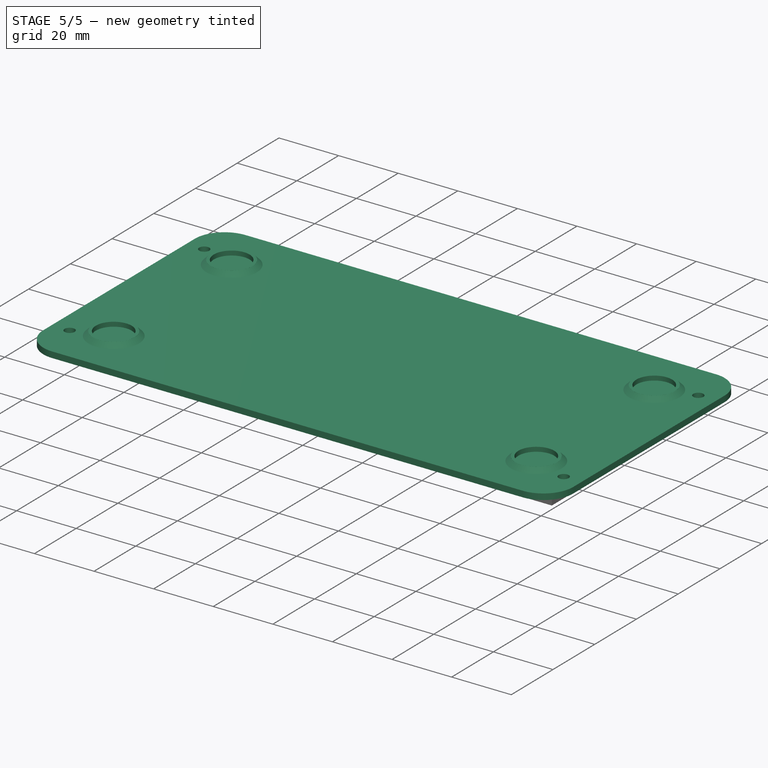
[diagram: stage 5 of 5 — iso view after this stage's code; geometry added in this stage tinted green]
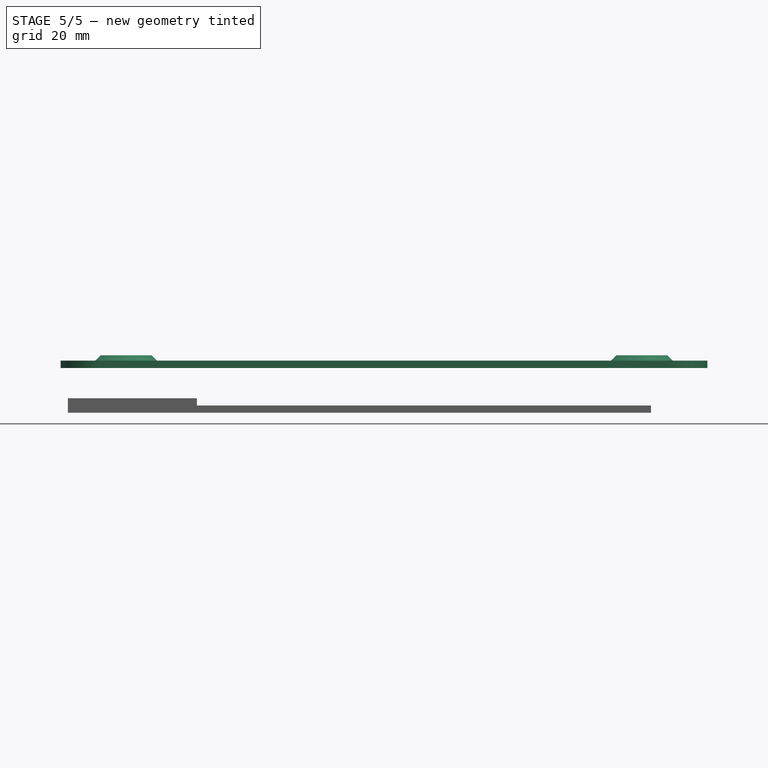
[diagram: stage 5 of 5 — front view after this stage's code; geometry added in this stage tinted green]
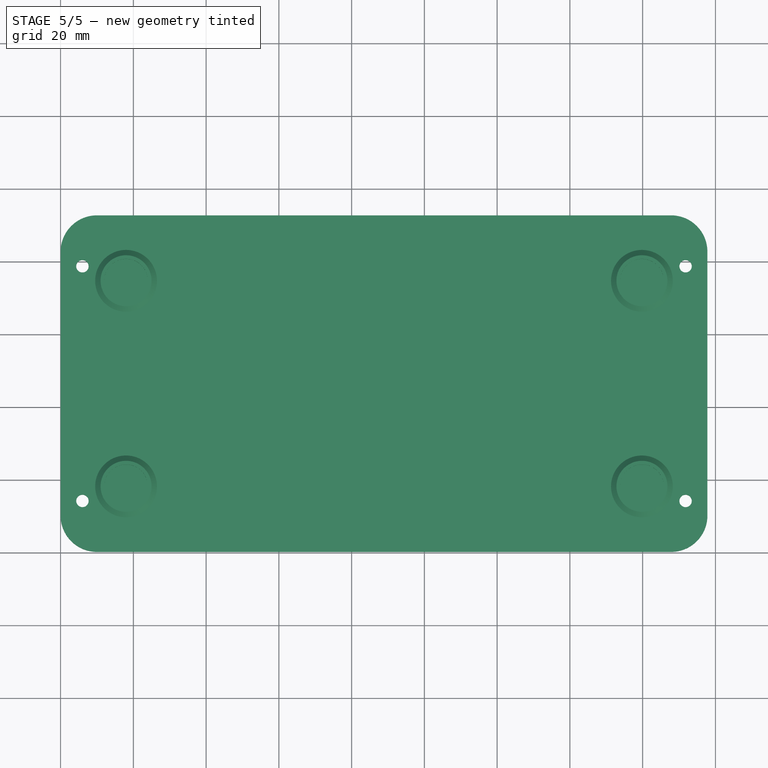
[diagram: stage 5 of 5 — top view after this stage's code; geometry added in this stage tinted green]
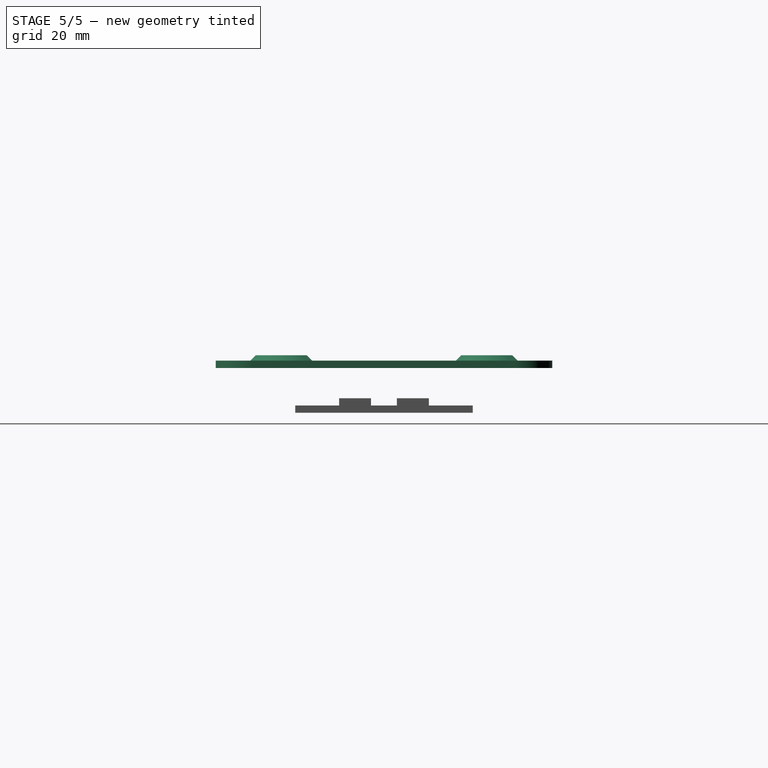
[diagram: stage 5 of 5 — right view after this stage's code; geometry added in this stage tinted green]
FEATURE [PartDesign::ShapeBinder] ShapeBinder001
  Placement = pos=(0,0,25.4) rot=(0,0,1;0rad)
  Support = -> [Fillet]
  TraceSupport = false
FEATURE [PartDesign::ShapeBinder] ShapeBinder002
  Support = -> [Pad004]
  TraceSupport = false
FEATURE [PartDesign::Pad] Pad005
  Direction = (0,0,1)
  Length = 2
  Length2 = 10
  Placement = pos=(0,0,25.4) rot=(0,0,1;0rad)
  Profile = -> ShapeBinder001
  Refine = true
  Suppressed = false
  Type = 0
FEATURE [Sketcher::SketchObject] Sketch008
  ArcFitTolerance = 1e-06
  AttachmentSupport = -> [Pad005]
  ExternalGeometry = -> [ShapeBinder002]
  FullyConstrained = true
  MakeInternals = false
  MapMode = 5
  Placement = pos=(0,0,27.4) rot=(0,0,1;0rad)
  sketch-geometry (4):
    g0: Circle CenterX=6 CenterY=78.519 CenterZ=0 NormalX=0 NormalY=0 NormalZ=1 AngleXU=0 Radius=1.7
    g1: Circle CenterX=6 CenterY=14 CenterZ=0 NormalX=0 NormalY=0 NormalZ=1 AngleXU=0 Radius=1.7
    g2: Circle CenterX=171.8 CenterY=78.519 CenterZ=0 NormalX=0 NormalY=0 NormalZ=1 AngleXU=0 Radius=1.7
    g3: Circle CenterX=171.8 CenterY=14 CenterZ=0 NormalX=0 NormalY=0 NormalZ=1 AngleXU=0 Radius=1.7
  constraints (8):
    c: Diameter(g0) = 3.4
    c: Coincident(g0,g-3)
    c: Coincident(g1,g-4)
    c: Coincident(g2,g-6)
    c: Coincident(g3,g-5)
    c: Equal(g0,g1)
    c: Equal(g1,g2)
    c: Equal(g2,g3)
FEATURE [PartDesign::Pocket] Pocket003
  BaseFeature = -> Pad005
  Direction = (0,0,-1)
  Length = 5
  Length2 = 5
  Placement = pos=(0,0,25.4) rot=(0,0,1;0rad)
  Profile = -> Sketch008
  ReferenceAxis = -> Sketch008 [N_Axis]
  Refine = true
  Suppressed = false
  Type = 1
FEATURE [Sketcher::SketchObject] Sketch009
  ArcFitTolerance = 1e-06
  AttachmentSupport = -> [Pocket003]
  ExternalGeometry = -> [Pocket003]
  FullyConstrained = true
  MakeInternals = false
  MapMode = 5
  Placement = pos=(0,0,27.4) rot=(0,0,1;0rad)
  sketch-geometry (20):
    g0: Circle CenterX=18 CenterY=74.519 CenterZ=0 NormalX=0 NormalY=0 NormalZ=1 AngleXU=0 Radius=6
    g1: Circle CenterX=18 CenterY=18 CenterZ=0 NormalX=0 NormalY=0 NormalZ=1 AngleXU=0 Radius=6
    g2: Circle CenterX=159.8 CenterY=74.519 CenterZ=0 NormalX=0 NormalY=0 NormalZ=1 AngleXU=0 Radius=6
    g3: Circle CenterX=159.8 CenterY=18 CenterZ=0 NormalX=0 NormalY=0 NormalZ=1 AngleXU=0 Radius=6
    g4: LineSegment [constr] StartX=18 StartY=74.519 StartZ=0 EndX=159.8 EndY=74.519 EndZ=0
    g5: LineSegment [constr] StartX=159.8 StartY=74.519 StartZ=0 EndX=159.8 EndY=18 EndZ=0
    g6: LineSegment [constr] StartX=159.8 StartY=18 StartZ=0 EndX=18 EndY=18 EndZ=0
    g7: LineSegment [constr] StartX=18 StartY=18 StartZ=0 EndX=18 EndY=74.519 EndZ=0
    g8: LineSegment [constr] StartX=10 StartY=92.519 StartZ=0 EndX=18 EndY=74.519 EndZ=0
    g9: LineSegment [constr] StartX=0 StartY=82.519 StartZ=0 EndX=18 EndY=74.519 EndZ=0
    g10: LineSegment [constr] StartX=18 StartY=18 StartZ=0 EndX=0 EndY=10 EndZ=0
    g11: LineSegment [constr] StartX=18 StartY=18 StartZ=0 EndX=10 EndY=0 EndZ=0
    g12: LineSegment [constr] StartX=159.8 StartY=18 StartZ=0 EndX=167.8 EndY=0 EndZ=0
    g13: LineSegment [constr] StartX=159.8 StartY=18 StartZ=0 EndX=177.8 EndY=10 EndZ=0
    g14: LineSegment [constr] StartX=159.8 StartY=74.519 StartZ=0 EndX=167.8 EndY=92.519 EndZ=0
    g15: LineSegment [constr] StartX=159.8 StartY=74.519 StartZ=0 EndX=177.8 EndY=82.519 EndZ=0
    g16: Circle CenterX=18 CenterY=74.519 CenterZ=0 NormalX=0 NormalY=0 NormalZ=1 AngleXU=0 Radius=7
    g17: Circle CenterX=18 CenterY=18 CenterZ=0 NormalX=0 NormalY=0 NormalZ=1 AngleXU=0 Radius=7
    g18: Circle CenterX=159.8 CenterY=74.519 CenterZ=0 NormalX=0 NormalY=0 NormalZ=1 AngleXU=0 Radius=7
    g19: Circle CenterX=159.8 CenterY=18 CenterZ=0 NormalX=0 NormalY=0 NormalZ=1 AngleXU=0 Radius=7
  constraints (44):
    c: Diameter(g0) = 12
    c: Equal(g0,g1)
    c: Equal(g1,g2)
    c: Equal(g2,g3)
    c: Coincident(g4,g0)
    c: Coincident(g4,g2)
    c: Horizontal(g4)
    c: Coincident(g5,g2)
    c: Coincident(g5,g3)
    c: Vertical(g5)
    c: Coincident(g6,g3)
    c: Coincident(g6,g1)
    c: Horizontal(g6)
    c: Coincident(g7,g1)
    c: Coincident(g7,g0)
    c: Vertical(g7)
    c: Coincident(g8,g-3)
    c: Coincident(g8,g0)
    c: Coincident(g9,g-4)
    c: Coincident(g9,g0)
    c: Equal(g8,g9)
    c: Coincident(g10,g1)
    c: Coincident(g10,g-4)
    c: Coincident(g11,g1)
    c: Coincident(g11,g-6)
    c: Coincident(g12,g3)
    c: Coincident(g12,g-6)
    c: Coincident(g13,g3)
    c: Coincident(g13,g-5)
    c: Coincident(g14,g2)
    c: Coincident(g14,g-3)
    c: Coincident(g15,g2)
    c: Coincident(g15,g-5)
    c: Equal(g9,g10)
    c: Equal(g12,g8)
    c: DistanceY(g8,g8) = 18
    c: Diameter(g16) = 14
    c: Coincident(g16,g0)
    c: Coincident(g17,g1)
    c: Coincident(g18,g2)
    c: Coincident(g19,g3)
    c: Equal(g16,g18)
    c: Equal(g18,g19)
    c: Equal(g19,g17)
FEATURE [PartDesign::Pad] Pad006
  BaseFeature = -> Pocket003
  Direction = (0,0,1)
  Length = 1.5
  Length2 = 10
  Placement = pos=(0,0,25.4) rot=(0,0,1;0rad)
  Profile = -> Sketch009
  ReferenceAxis = -> Sketch009 [N_Axis]
  Refine = true
  Suppressed = false
  Type = 0
FEATURE [PartDesign::Chamfer] Chamfer
  Angle = 45
  Base = -> Pad006 [Edge29,Edge26,Edge28,Edge31]
  BaseFeature = -> Pad006
  ChamferType = 0
  FlipDirection = false
  Placement = pos=(0,0,25.4) rot=(0,0,1;0rad)
  Refine = true
  Size = 1.49
  Size2 = 1
  SupportTransform = false
  Suppressed = false
  UseAllEdges = false
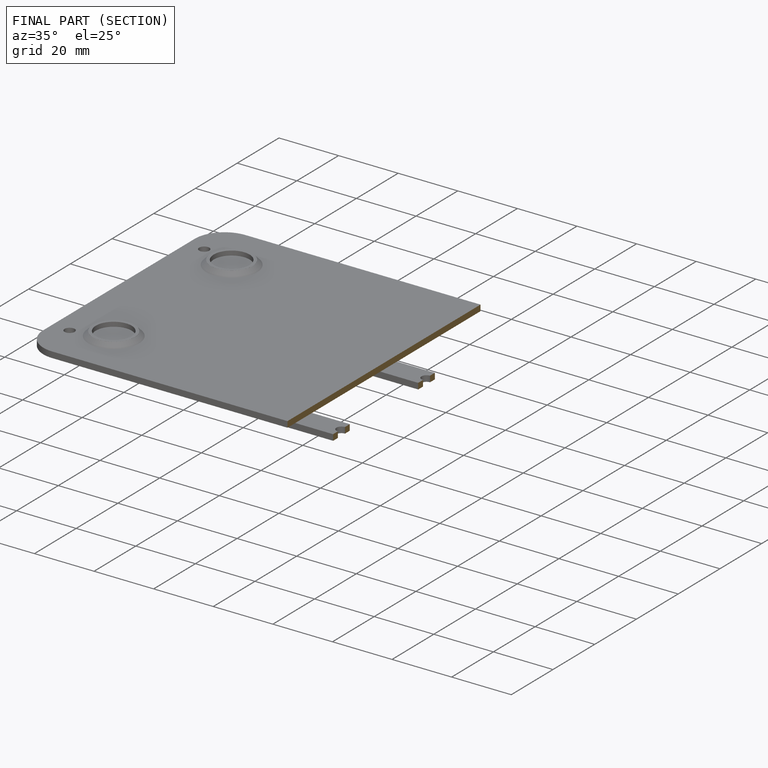
[diagram: finished part — half-section view (interior)]
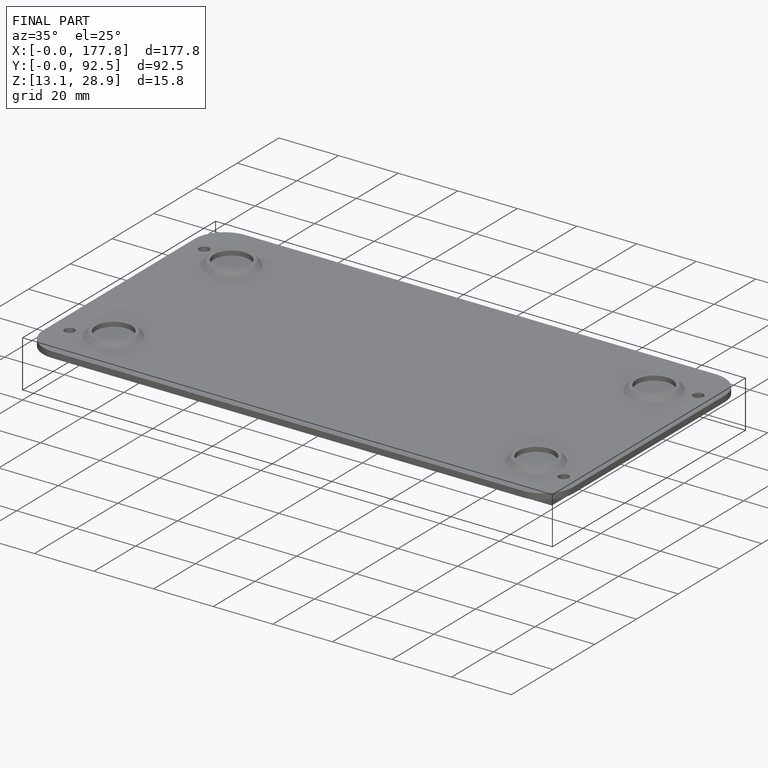
[diagram: finished part — iso view with bounding-box wireframe]
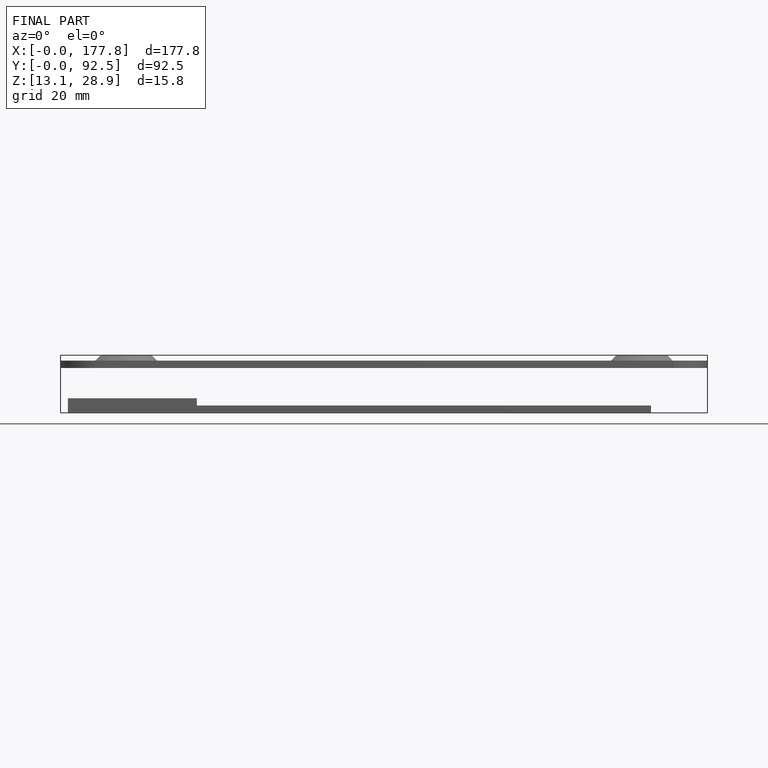
[diagram: finished part — front view with bounding-box wireframe]
